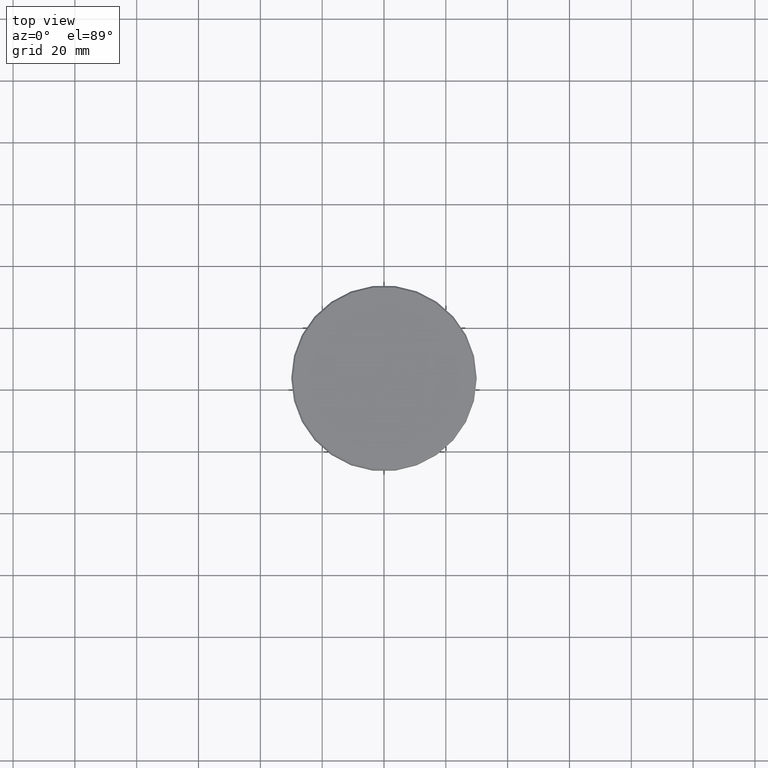
[diagram: clean part render]
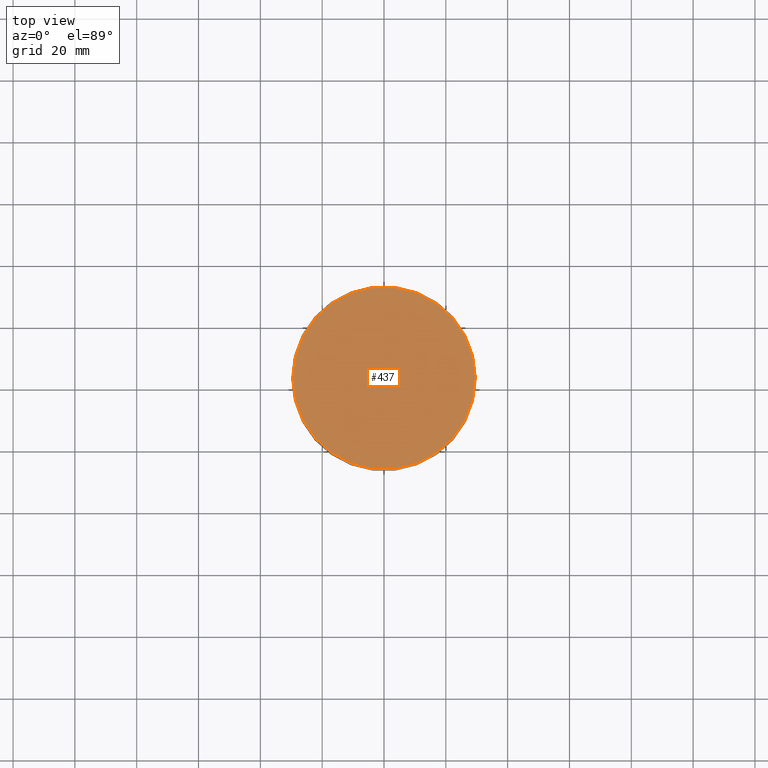
[diagram: same view with one face highlighted and labeled with its STEP entity id]
A machine part, top view. The second image highlights one B-rep face of the part: STEP entity #437.
In plain terms, the highlighted planar face has unit normal (0, -0, 1).
Its self-contained STEP definition (entity closure, byte-faithful):
#2 = EDGE_LOOP ( 'NONE', ( #737, #719 ) ) ;
#51 = PLANE ( 'NONE',  #801 ) ;
#75 = AXIS2_PLACEMENT_3D ( 'NONE', #152, #429, #599 ) ;
#152 = CARTESIAN_POINT ( 'NONE',  ( 0.000000000000000000, 0.000000000000000000, 0.000000000000000000 ) ) ;
#197 = DIRECTION ( 'NONE',  ( 1.000000000000000000, 0.000000000000000000, 0.000000000000000000 ) ) ;
#261 = DIRECTION ( 'NONE',  ( 1.000000000000000000, 0.000000000000000000, 0.000000000000000000 ) ) ;
#282 = VERTEX_POINT ( 'NONE', #634 ) ;
#405 = EDGE_CURVE ( 'NONE', #489, #282, #956, .T. ) ;
#429 = DIRECTION ( 'NONE',  ( -0.000000000000000000, -0.000000000000000000, 1.000000000000000000 ) ) ;
#437 = ADVANCED_FACE ( 'NONE', ( #509 ), #51, .T. ) ;
#445 = CIRCLE ( 'NONE', #803, 29.50000000000002487 ) ;
#489 = VERTEX_POINT ( 'NONE', #715 ) ;
#509 = FACE_OUTER_BOUND ( 'NONE', #2, .T. ) ;
#549 = CARTESIAN_POINT ( 'NONE',  ( 0.000000000000000000, 0.000000000000000000, 0.000000000000000000 ) ) ;
#599 = DIRECTION ( 'NONE',  ( 1.000000000000000000, 0.000000000000000000, 0.000000000000000000 ) ) ;
#620 = CARTESIAN_POINT ( 'NONE',  ( 0.000000000000000000, 0.000000000000000000, 0.000000000000000000 ) ) ;
#634 = CARTESIAN_POINT ( 'NONE',  ( -29.50000000000002487, 0.000000000000000000, 0.000000000000000000 ) ) ;
#715 = CARTESIAN_POINT ( 'NONE',  ( 29.50000000000002487, 3.643324227463376968E-15, 0.000000000000000000 ) ) ;
#719 = ORIENTED_EDGE ( 'NONE', *, *, #405, .T. ) ;
#737 = ORIENTED_EDGE ( 'NONE', *, *, #767, .T. ) ;
#767 = EDGE_CURVE ( 'NONE', #282, #489, #445, .T. ) ;
#801 = AXIS2_PLACEMENT_3D ( 'NONE', #620, #977, #261 ) ;
#803 = AXIS2_PLACEMENT_3D ( 'NONE', #549, #909, #197 ) ;
#909 = DIRECTION ( 'NONE',  ( -0.000000000000000000, -0.000000000000000000, 1.000000000000000000 ) ) ;
#956 = CIRCLE ( 'NONE', #75, 29.50000000000002487 ) ;
#977 = DIRECTION ( 'NONE',  ( 0.000000000000000000, -0.000000000000000000, 1.000000000000000000 ) ) ;